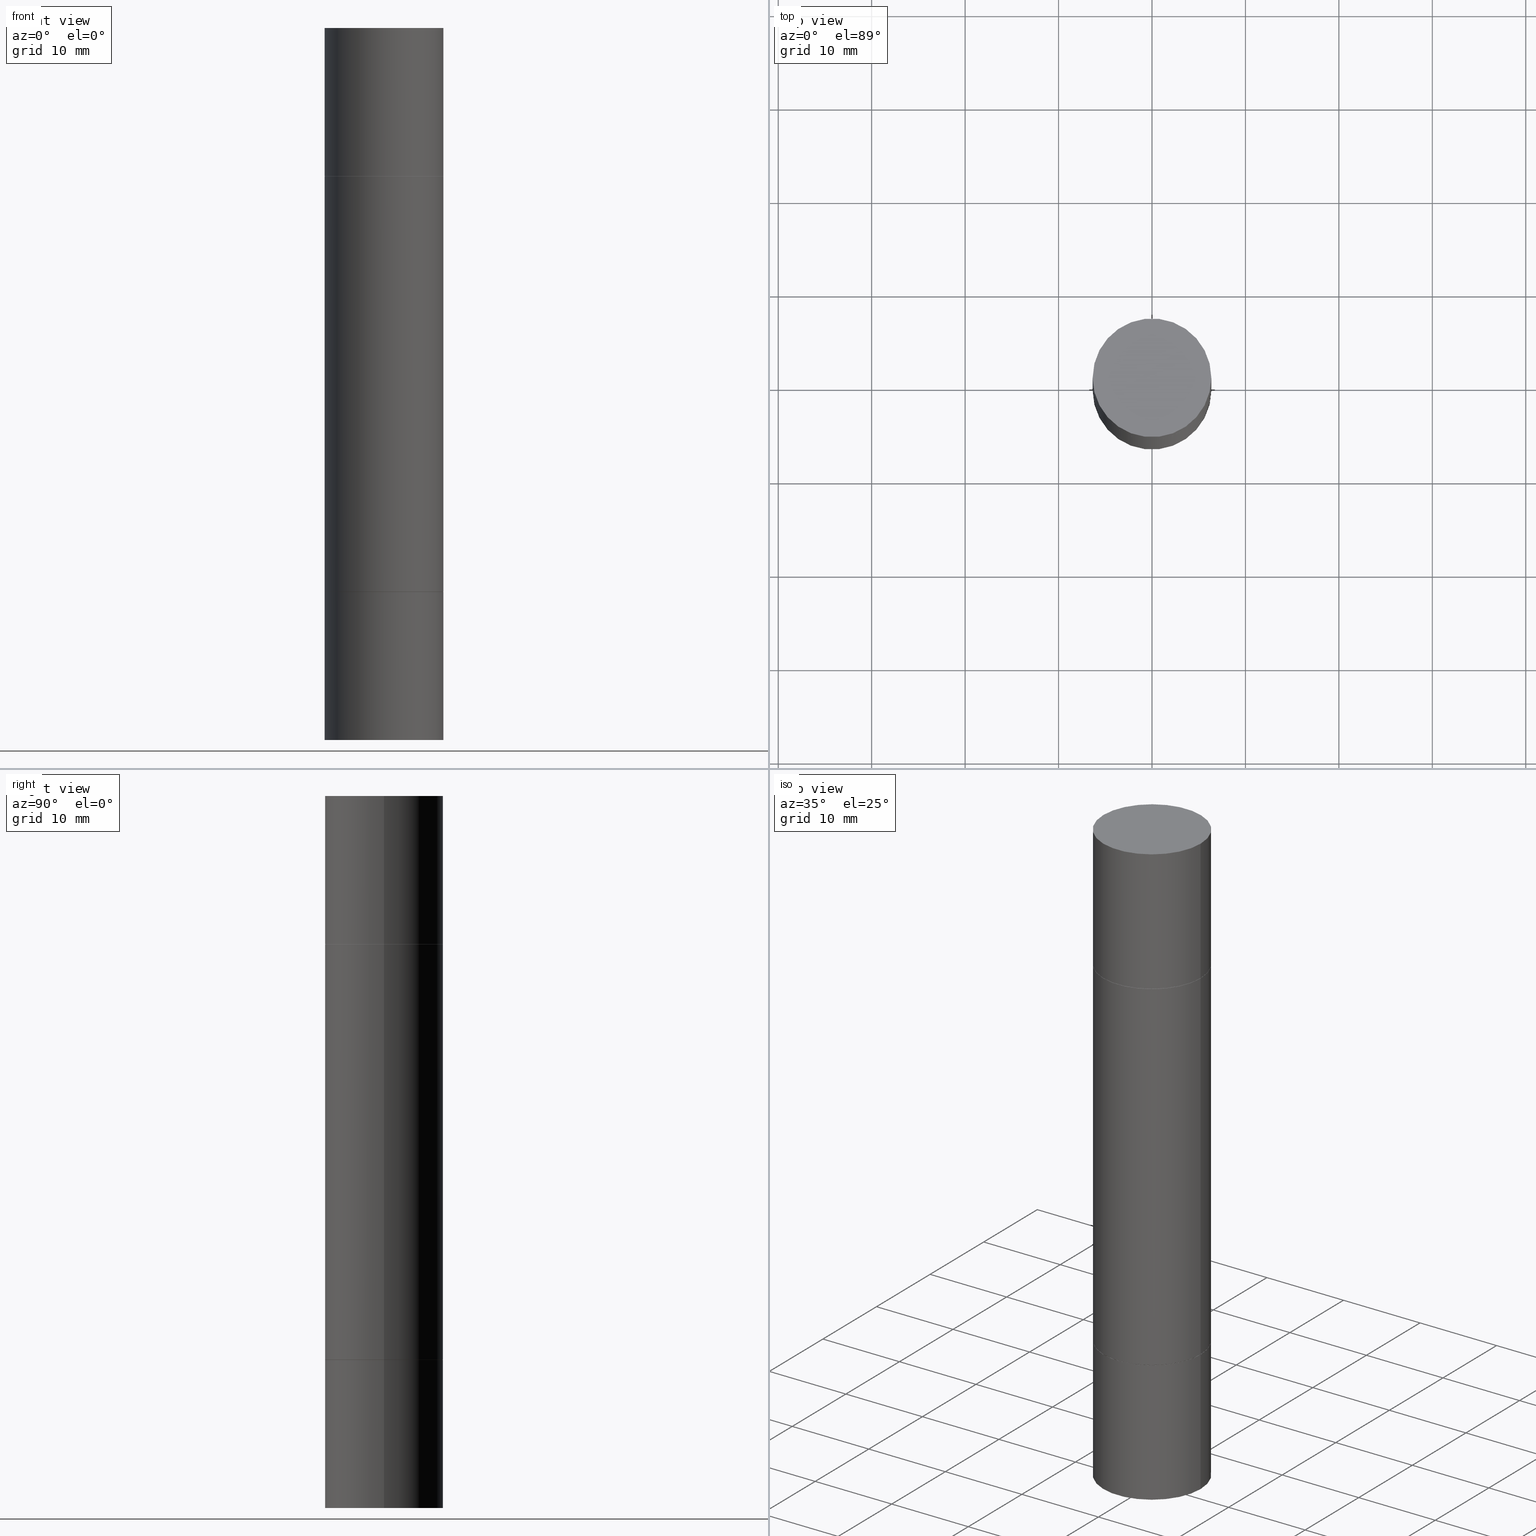
[diagram: canonical four-view strip — front | top / right | iso, engineering-drawing reading convention]
A machine part, canonical four-view strip (front | top / right | iso — engineering-drawing reading convention). The complete STEP part file that produces these views, byte-faithful:
ISO-10303-21;
HEADER;
FILE_DESCRIPTION (( 'STEP AP203' ),
    '1' );
FILE_NAME ('31189.STEP',
    '2024-03-04T15:41:29',
    ( '' ),
    ( '' ),
    'SwSTEP 2.0',
    'SolidWorks 2023',
    '' );
FILE_SCHEMA (( 'CONFIG_CONTROL_DESIGN' ));
ENDSEC;

DATA;
#1 = AXIS2_PLACEMENT_3D ( 'NONE', #385, #599, #234 ) ;
#2 = AXIS2_PLACEMENT_3D ( 'NONE', #155, #521, #3 ) ;
#3 = DIRECTION ( 'NONE',  ( 1.000000000000000000, -6.982962677686266711E-15, 0.000000000000000000 ) ) ;
#4 = ORIENTED_EDGE ( 'NONE', *, *, #343, .T. ) ;
#5 = DIRECTION ( 'NONE',  ( 0.000000000000000000, 3.492185875197449524E-15, 1.000000000000000000 ) ) ;
#6 = ORIENTED_EDGE ( 'NONE', *, *, #608, .T. ) ;
#7 = EDGE_CURVE ( 'NONE', #511, #565, #335, .T. ) ;
#8 = CYLINDRICAL_SURFACE ( 'NONE', #556, 0.2500000000000000000 ) ;
#9 = CYLINDRICAL_SURFACE ( 'NONE', #263, 0.2500000000000000000 ) ;
#10 = VERTEX_POINT ( 'NONE', #579 ) ;
#11 = MECHANICAL_CONTEXT ( 'NONE', #189, 'mechanical' ) ;
#12 = LINE ( 'NONE', #369, #276 ) ;
#13 = VERTEX_POINT ( 'NONE', #672 ) ;
#14 = CARTESIAN_POINT ( 'NONE',  ( 1.745740669421624462E-15, 0.2499999999999978073, -0.6249999999999997780 ) ) ;
#15 = CARTESIAN_POINT ( 'NONE',  ( 5.807988414689700538E-29, -2.180942898156930788E-15, -0.6249999999999988898 ) ) ;
#16 = ORIENTED_EDGE ( 'NONE', *, *, #149, .T. ) ;
#17 = AXIS2_PLACEMENT_3D ( 'NONE', #398, #516, #510 ) ;
#18 = CYLINDRICAL_SURFACE ( 'NONE', #1, 0.2500000000000000000 ) ;
#19 = AXIS2_PLACEMENT_3D ( 'NONE', #22, #537, #76 ) ;
#20 = CARTESIAN_POINT ( 'NONE',  ( 0.2500000000000000000, -3.926683567578497071E-15, -0.6249999999999988898 ) ) ;
#21 = FACE_OUTER_BOUND ( 'NONE', #88, .T. ) ;
#22 = CARTESIAN_POINT ( 'NONE',  ( 3.668203209277703774E-29, -5.237222008264716599E-15, -1.499999999999999556 ) ) ;
#23 = ORIENTED_EDGE ( 'NONE', *, *, #508, .F. ) ;
#24 = DIRECTION ( 'NONE',  ( -1.000000000000000000, 6.982962677686265922E-15, -9.839502134516470631E-33 ) ) ;
#25 = ADVANCED_FACE ( 'NONE', ( #153 ), #512, .T. ) ;
#26 = CARTESIAN_POINT ( 'NONE',  ( 1.745740669421624462E-15, 0.2499999999999917011, -2.375000000000000888 ) ) ;
#27 = EDGE_CURVE ( 'NONE', #13, #433, #212, .T. ) ;
#28 = CARTESIAN_POINT ( 'NONE',  ( 5.807988414689700538E-29, -8.292268179752471696E-15, -2.375000000000000000 ) ) ;
#29 = EDGE_CURVE ( 'NONE', #651, #342, #630, .T. ) ;
#30 = AXIS2_PLACEMENT_3D ( 'NONE', #14, #538, #138 ) ;
#31 = APPROVAL_PERSON_ORGANIZATION ( #539, #205, #70 ) ;
#32 = COORDINATED_UNIVERSAL_TIME_OFFSET ( 5, 0, .BEHIND. ) ;
#33 = EDGE_CURVE ( 'NONE', #172, #618, #635, .T. ) ;
#34 = EDGE_LOOP ( 'NONE', ( #481, #306, #472, #475 ) ) ;
#35 = CARTESIAN_POINT ( 'NONE',  ( -0.2489999999999999991, -4.726788967118193123E-16, -0.6249999999999988898 ) ) ;
#36 = EDGE_CURVE ( 'NONE', #10, #342, #527, .T. ) ;
#37 = LINE ( 'NONE', #258, #513 ) ;
#38 = ORIENTED_EDGE ( 'NONE', *, *, #399, .T. ) ;
#39 = DIRECTION ( 'NONE',  ( -2.445468806185136597E-29, 3.491481338843145583E-15, 1.000000000000000000 ) ) ;
#40 = EDGE_LOOP ( 'NONE', ( #248, #229, #108, #81 ) ) ;
#41 = AXIS2_PLACEMENT_3D ( 'NONE', #594, #381, #63 ) ;
#42 = CIRCLE ( 'NONE', #496, 0.2500000000000000000 ) ;
#43 = EDGE_CURVE ( 'NONE', #219, #55, #285, .T. ) ;
#44 = CARTESIAN_POINT ( 'NONE',  ( 0.000000000000000000, -1.047655762559234344E-14, -2.999999999999999112 ) ) ;
#45 = ORIENTED_EDGE ( 'NONE', *, *, #508, .T. ) ;
#46 = CARTESIAN_POINT ( 'NONE',  ( 5.807988414689700538E-29, -8.292268179752471696E-15, -2.375000000000000000 ) ) ;
#47 = EDGE_LOOP ( 'NONE', ( #211, #364, #154, #409 ) ) ;
#48 = FACE_OUTER_BOUND ( 'NONE', #160, .T. ) ;
#49 = ORIENTED_EDGE ( 'NONE', *, *, #333, .T. ) ;
#50 = CYLINDRICAL_SURFACE ( 'NONE', #57, 0.2499999999999998335 ) ;
#51 = VERTEX_POINT ( 'NONE', #107 ) ;
#52 = CARTESIAN_POINT ( 'NONE',  ( -0.2500000000000000000, -8.761433126149462132E-15, -2.999999999999999112 ) ) ;
#53 = ORIENTED_EDGE ( 'NONE', *, *, #482, .T. ) ;
#54 = DIRECTION ( 'NONE',  ( 1.000000000000000000, -6.982962677686269866E-15, 0.000000000000000000 ) ) ;
#55 = VERTEX_POINT ( 'NONE', #299 ) ;
#56 = ADVANCED_FACE ( 'NONE', ( #459 ), #166, .T. ) ;
#57 = AXIS2_PLACEMENT_3D ( 'NONE', #567, #464, #102 ) ;
#58 = AXIS2_PLACEMENT_3D ( 'NONE', #487, #231, #425 ) ;
#59 = FACE_OUTER_BOUND ( 'NONE', #118, .T. ) ;
#60 = DIRECTION ( 'NONE',  ( 1.000000000000000000, -6.982962677686266711E-15, 0.000000000000000000 ) ) ;
#61 = ORIENTED_EDGE ( 'NONE', *, *, #440, .T. ) ;
#62 = CARTESIAN_POINT ( 'NONE',  ( 7.336406418555409790E-29, 2.113609062914567177E-18, 1.092739197465705287E-15 ) ) ;
#63 = DIRECTION ( 'NONE',  ( 1.000000000000000000, -6.982962677686266711E-15, 0.000000000000000000 ) ) ;
#64 = CALENDAR_DATE ( 2024, 4, 3 ) ;
#65 = DIRECTION ( 'NONE',  ( 1.000000000000000000, -6.982962677686266711E-15, 0.000000000000000000 ) ) ;
#66 = ORIENTED_EDGE ( 'NONE', *, *, #393, .F. ) ;
#67 = DIRECTION ( 'NONE',  ( -2.438088387897960049E-29, 3.491481338843145188E-15, 1.000000000000000000 ) ) ;
#68 = DIRECTION ( 'NONE',  ( -0.7071067811865232589, 2.381258160591016070E-15, -0.7071067811865715536 ) ) ;
#69 = CLOSED_SHELL ( 'NONE', ( #596, #386, #183, #350 ) ) ;
#70 = APPROVAL_ROLE ( '' ) ;
#71 = CARTESIAN_POINT ( 'NONE',  ( -0.2500000000000000000, 6.257098548958748880E-16, 1.092739197465709232E-15 ) ) ;
#72 = AXIS2_PLACEMENT_3D ( 'NONE', #327, #181, #483 ) ;
#73 = VECTOR ( 'NONE', #467, 39.37007874015748143 ) ;
#74 = DIRECTION ( 'NONE',  ( -1.000000000000000000, 6.982962677686265922E-15, -9.839502134516470631E-33 ) ) ;
#75 = PRODUCT ( '31189', '31189', '', ( #11 ) ) ;
#76 = DIRECTION ( 'NONE',  ( 0.000000000000000000, 1.000000000000000000, -3.278217592397118229E-15 ) ) ;
#77 = ORIENTED_EDGE ( 'NONE', *, *, #332, .T. ) ;
#78 = PLANE ( 'NONE',  #186 ) ;
#79 = COORDINATED_UNIVERSAL_TIME_OFFSET ( 5, 0, .BEHIND. ) ;
#80 = DIRECTION ( 'NONE',  ( -2.445468806185136877E-29, -3.492890411551753071E-15, -1.000000000000000000 ) ) ;
#81 = ORIENTED_EDGE ( 'NONE', *, *, #178, .T. ) ;
#82 = DIRECTION ( 'NONE',  ( -2.445468806185136597E-29, -3.492890411551752677E-15, -1.000000000000000000 ) ) ;
#83 = MANIFOLD_SOLID_BREP ( 'Mirror1[1]', #554 ) ;
#84 = EDGE_CURVE ( 'NONE', #460, #94, #391, .T. ) ;
#85 = CARTESIAN_POINT ( 'NONE',  ( 0.2500000000000000000, -1.743627060358652092E-15, 1.092739197465705287E-15 ) ) ;
#86 = AXIS2_PLACEMENT_3D ( 'NONE', #260, #471, #188 ) ;
#87 = LOCAL_TIME ( 10, 41, 29.00000000000000000, #641 ) ;
#88 = EDGE_LOOP ( 'NONE', ( #259, #38, #457, #445 ) ) ;
#89 = CALENDAR_DATE ( 2024, 4, 3 ) ;
#90 = APPROVAL_DATE_TIME ( #431, #205 ) ;
#91 = CONICAL_SURFACE ( 'NONE', #202, 0.2489999999999999991, 0.7853981633974141952 ) ;
#92 = VECTOR ( 'NONE', #282, 39.37007874015748143 ) ;
#93 = DIMENSIONAL_EXPONENTS ( 1.000000000000000000, 0.000000000000000000, 0.000000000000000000, 0.000000000000000000, 0.000000000000000000, 0.000000000000000000, 0.000000000000000000 ) ;
#94 = VERTEX_POINT ( 'NONE', #268 ) ;
#95 = DIRECTION ( 'NONE',  ( -1.000000000000000000, 6.982962677686265922E-15, -9.839502134516470631E-33 ) ) ;
#96 = MANIFOLD_SOLID_BREP ( 'Mirror1[4]', #469 ) ;
#97 = ADVANCED_FACE ( 'NONE', ( #207 ), #50, .T. ) ;
#98 = CARTESIAN_POINT ( 'NONE',  ( 0.2489999999999999991, -3.919700604900811057E-15, -0.6249999999999988898 ) ) ;
#99 = EDGE_LOOP ( 'NONE', ( #636, #145, #525, #302 ) ) ;
#100 = PRODUCT_DEFINITION ( 'UNKNOWN', '', #456, #435 ) ;
#101 = CARTESIAN_POINT ( 'NONE',  ( -0.2500000000000000000, 1.776356839400250465E-15, -1.229733772563726445E-29 ) ) ;
#102 = DIRECTION ( 'NONE',  ( 1.000000000000000000, -6.982962677686267499E-15, 0.000000000000000000 ) ) ;
#103 = ORIENTED_EDGE ( 'NONE', *, *, #581, .T. ) ;
#104 = AXIS2_PLACEMENT_3D ( 'NONE', #668, #522, #349 ) ;
#105 = SECURITY_CLASSIFICATION ( '', '', #664 ) ;
#106 = DIRECTION ( 'NONE',  ( 2.445468806185136597E-29, 3.492890411551752677E-15, 1.000000000000000000 ) ) ;
#107 = CARTESIAN_POINT ( 'NONE',  ( -0.2500000000000000000, 6.257098548958748880E-16, 1.092739197465709232E-15 ) ) ;
#108 = ORIENTED_EDGE ( 'NONE', *, *, #466, .T. ) ;
#109 = CARTESIAN_POINT ( 'NONE',  ( -0.2500000000000000000, 6.257098548958748880E-16, -0.6249999999999988898 ) ) ;
#110 = EDGE_LOOP ( 'NONE', ( #629, #66, #45, #571 ) ) ;
#111 = ADVANCED_FACE ( 'NONE', ( #679 ), #576, .F. ) ;
#112 = CARTESIAN_POINT ( 'NONE',  ( 5.807988414689700538E-29, -2.180942898156930788E-15, -0.6249999999999988898 ) ) ;
#113 = ORIENTED_EDGE ( 'NONE', *, *, #33, .F. ) ;
#114 = EDGE_CURVE ( 'NONE', #429, #568, #250, .T. ) ;
#115 = CYLINDRICAL_SURFACE ( 'NONE', #264, 0.2500000000000000000 ) ;
#116 = EDGE_LOOP ( 'NONE', ( #344, #296 ) ) ;
#117 = DIRECTION ( 'NONE',  ( 1.000000000000000000, -6.982962677686262766E-15, 0.000000000000000000 ) ) ;
#118 = EDGE_LOOP ( 'NONE', ( #607, #420, #407, #678 ) ) ;
#119 = CIRCLE ( 'NONE', #584, 0.2500000000000000000 ) ;
#120 = CONICAL_SURFACE ( 'NONE', #146, 0.2489999999999999991, 0.7853981633974141952 ) ;
#121 = CARTESIAN_POINT ( 'NONE',  ( -0.2489999999999999991, -4.709950929187094786E-16, -0.6249999999999988898 ) ) ;
#122 = PLANE ( 'NONE',  #426 ) ;
#123 = EDGE_CURVE ( 'NONE', #55, #219, #470, .T. ) ;
#124 = APPROVAL_STATUS ( 'not_yet_approved' ) ;
#125 = CARTESIAN_POINT ( 'NONE',  ( 5.807988414689700538E-29, -2.180942898156930788E-15, -0.6249999999999988898 ) ) ;
#126 = CARTESIAN_POINT ( 'NONE',  ( 5.807988414689700538E-29, -8.292268179752471696E-15, -2.375000000000000000 ) ) ;
#127 = PLANE ( 'NONE',  #58 ) ;
#128 = DATE_AND_TIME ( #64, #87 ) ;
#129 = CARTESIAN_POINT ( 'NONE',  ( 0.000000000000000000, -1.047655762559234344E-14, -2.999999999999999112 ) ) ;
#130 = CARTESIAN_POINT ( 'NONE',  ( -0.2500000000000000000, -4.693112891255996450E-16, -0.6259999999999990017 ) ) ;
#131 = CLOSED_SHELL ( 'NONE', ( #492, #97, #25, #658, #353, #387, #279, #245 ) ) ;
#132 = APPLICATION_PROTOCOL_DEFINITION ( 'international standard', 'config_control_design', 1994, #373 ) ;
#133 = CARTESIAN_POINT ( 'NONE',  ( 5.807988414689700538E-29, -2.180942898156930788E-15, -0.6249999999999988898 ) ) ;
#134 = AXIS2_PLACEMENT_3D ( 'NONE', #400, #451, #301 ) ;
#135 = CIRCLE ( 'NONE', #515, 0.2489999999999999991 ) ;
#136 = FACE_OUTER_BOUND ( 'NONE', #223, .T. ) ;
#137 = DIRECTION ( 'NONE',  ( 2.445468806185136597E-29, 3.492890411551752677E-15, 1.000000000000000000 ) ) ;
#138 = DIRECTION ( 'NONE',  ( -1.000000000000000000, 6.982962677686265922E-15, -9.839502134516470631E-33 ) ) ;
#139 = EDGE_CURVE ( 'NONE', #618, #444, #663, .T. ) ;
#140 = PERSON_AND_ORGANIZATION ( #217, #670 ) ;
#141 = PERSON_AND_ORGANIZATION ( #217, #670 ) ;
#142 = CC_DESIGN_PERSON_AND_ORGANIZATION_ASSIGNMENT ( #140, #388, ( #105 ) ) ;
#143 = VERTEX_POINT ( 'NONE', #541 ) ;
#144 = VECTOR ( 'NONE', #341, 39.37007874015748854 ) ;
#145 = ORIENTED_EDGE ( 'NONE', *, *, #33, .T. ) ;
#146 = AXIS2_PLACEMENT_3D ( 'NONE', #133, #588, #228 ) ;
#147 = PERSON_AND_ORGANIZATION ( #217, #670 ) ;
#148 = PLANE ( 'NONE',  #616 ) ;
#149 = EDGE_CURVE ( 'NONE', #13, #444, #535, .T. ) ;
#150 = AXIS2_PLACEMENT_3D ( 'NONE', #602, #137, #329 ) ;
#151 = CARTESIAN_POINT ( 'NONE',  ( 5.805542945883514935E-29, -2.184435788568482141E-15, -0.6259999999999990017 ) ) ;
#152 = ADVANCED_FACE ( 'NONE', ( #21 ), #18, .T. ) ;
#153 = FACE_OUTER_BOUND ( 'NONE', #47, .T. ) ;
#154 = ORIENTED_EDGE ( 'NONE', *, *, #613, .T. ) ;
#155 = CARTESIAN_POINT ( 'NONE',  ( 7.336406418555409790E-29, 2.113609062914567177E-18, 1.092739197465705287E-15 ) ) ;
#156 = ORIENTED_EDGE ( 'NONE', *, *, #225, .T. ) ;
#157 = CARTESIAN_POINT ( 'NONE',  ( 7.336406418555409790E-29, -1.047444401652943635E-14, -3.000000000000000444 ) ) ;
#158 = DIRECTION ( 'NONE',  ( 2.445468806185136597E-29, 3.492890411551752677E-15, 1.000000000000000000 ) ) ;
#159 = EDGE_LOOP ( 'NONE', ( #615, #640, #300, #358 ) ) ;
#160 = EDGE_LOOP ( 'NONE', ( #113, #403, #468, #253 ) ) ;
#161 = AXIS2_PLACEMENT_3D ( 'NONE', #376, #589, #585 ) ;
#162 =( GEOMETRIC_REPRESENTATION_CONTEXT ( 3 ) GLOBAL_UNCERTAINTY_ASSIGNED_CONTEXT ( ( #552 ) ) GLOBAL_UNIT_ASSIGNED_CONTEXT ( ( #182, #543, #503 ) ) REPRESENTATION_CONTEXT ( 'NONE', 'WORKASPACE' ) );
#163 = ADVANCED_FACE ( 'NONE', ( #136 ), #453, .T. ) ;
#164 = CARTESIAN_POINT ( 'NONE',  ( 5.805542945883514935E-29, -8.288776698413628688E-15, -2.374000000000000110 ) ) ;
#165 = ORIENTED_EDGE ( 'NONE', *, *, #123, .T. ) ;
#166 = CYLINDRICAL_SURFACE ( 'NONE', #662, 0.2499999999999998335 ) ;
#167 = ORIENTED_EDGE ( 'NONE', *, *, #666, .T. ) ;
#168 = CYLINDRICAL_SURFACE ( 'NONE', #410, 0.2500000000000000000 ) ;
#169 = PERSON_AND_ORGANIZATION ( #217, #670 ) ;
#170 = DIRECTION ( 'NONE',  ( 2.445468806185136597E-29, 3.492890411551752677E-15, 1.000000000000000000 ) ) ;
#171 = CARTESIAN_POINT ( 'NONE',  ( 5.805542945883514935E-29, -8.288776698413628688E-15, -2.374000000000000110 ) ) ;
#172 = VERTEX_POINT ( 'NONE', #130 ) ;
#173 = EDGE_CURVE ( 'NONE', #433, #13, #643, .T. ) ;
#174 = APPROVAL_STATUS ( 'not_yet_approved' ) ;
#175 = LOCAL_TIME ( 10, 41, 29.00000000000000000, #374 ) ;
#176 = DIRECTION ( 'NONE',  ( 1.000000000000000000, -6.982962677686270655E-15, 0.000000000000000000 ) ) ;
#177 = PLANE ( 'NONE',  #161 ) ;
#178 = EDGE_CURVE ( 'NONE', #623, #489, #359, .T. ) ;
#179 = DIRECTION ( 'NONE',  ( 1.000000000000000000, -6.982962677686266711E-15, 0.000000000000000000 ) ) ;
#180 = DIRECTION ( 'NONE',  ( 2.445468806185136597E-29, 3.492890411551752677E-15, 1.000000000000000000 ) ) ;
#181 = DIRECTION ( 'NONE',  ( -2.445468806185136597E-29, 3.491481338843145583E-15, 1.000000000000000000 ) ) ;
#182 =( CONVERSION_BASED_UNIT ( 'INCH', #491 ) LENGTH_UNIT ( ) NAMED_UNIT ( #93 ) );
#183 = ADVANCED_FACE ( 'NONE', ( #548 ), #325, .F. ) ;
#184 = APPROVAL_ROLE ( '' ) ;
#185 = LINE ( 'NONE', #524, #529 ) ;
#186 = AXIS2_PLACEMENT_3D ( 'NONE', #283, #230, #74 ) ;
#187 = LOCAL_TIME ( 10, 41, 29.00000000000000000, #32 ) ;
#188 = DIRECTION ( 'NONE',  ( 1.000000000000000000, -6.982962677686262766E-15, 0.000000000000000000 ) ) ;
#189 = APPLICATION_CONTEXT ( 'configuration controlled 3d designs of mechanical parts and assemblies' ) ;
#190 = ADVANCED_FACE ( 'NONE', ( #434 ), #78, .T. ) ;
#191 = APPROVAL ( #501, 'UNSPECIFIED' ) ;
#192 = PERSON_AND_ORGANIZATION_ROLE ( 'creator' ) ;
#193 = ORIENTED_EDGE ( 'NONE', *, *, #265, .F. ) ;
#194 = AXIS2_PLACEMENT_3D ( 'NONE', #171, #378, #655 ) ;
#195 = CIRCLE ( 'NONE', #360, 0.2500000000000000000 ) ;
#196 = ORIENTED_EDGE ( 'NONE', *, *, #114, .T. ) ;
#197 = ADVANCED_FACE ( 'NONE', ( #603 ), #271, .F. ) ;
#198 = CARTESIAN_POINT ( 'NONE',  ( 0.2500000000000000000, -1.003451736783519537E-14, -2.374000000000000110 ) ) ;
#199 = ORIENTED_EDGE ( 'NONE', *, *, #36, .T. ) ;
#200 = DIRECTION ( 'NONE',  ( 0.000000000000000000, 1.000000000000000000, -3.492185875197449524E-15 ) ) ;
#201 = ORIENTED_EDGE ( 'NONE', *, *, #84, .T. ) ;
#202 = AXIS2_PLACEMENT_3D ( 'NONE', #28, #553, #500 ) ;
#203 = DIRECTION ( 'NONE',  ( 2.438088387897959769E-29, 3.492890411551753071E-15, 1.000000000000000000 ) ) ;
#204 = ORIENTED_EDGE ( 'NONE', *, *, #7, .T. ) ;
#205 = APPROVAL ( #174, 'UNSPECIFIED' ) ;
#206 = DIRECTION ( 'NONE',  ( 2.445468806185136597E-29, 3.492890411551752677E-15, 1.000000000000000000 ) ) ;
#207 = FACE_OUTER_BOUND ( 'NONE', #99, .T. ) ;
#208 = EDGE_LOOP ( 'NONE', ( #336, #53 ) ) ;
#209 = LINE ( 'NONE', #52, #73 ) ;
#210 = EDGE_LOOP ( 'NONE', ( #517, #593 ) ) ;
#211 = ORIENTED_EDGE ( 'NONE', *, *, #638, .F. ) ;
#212 = CIRCLE ( 'NONE', #262, 0.2489999999999999991 ) ;
#213 = AXIS2_PLACEMENT_3D ( 'NONE', #291, #206, #305 ) ;
#214 = CC_DESIGN_APPROVAL ( #191, ( #105 ) ) ;
#215 = CARTESIAN_POINT ( 'NONE',  ( 7.336406418555409790E-29, 2.113609062914567177E-18, 1.092739197465705287E-15 ) ) ;
#216 = EDGE_LOOP ( 'NONE', ( #201, #633 ) ) ;
#217 = PERSON ( 'UNSPECIFIED', 'UNSPECIFIED', 'UNSPECIFIED', ('UNSPECIFIED'), ('UNSPECIFIED'), ('UNSPECIFIED') ) ;
#218 = DIRECTION ( 'NONE',  ( -0.000000000000000000, -3.492185875197449130E-15, -1.000000000000000000 ) ) ;
#219 = VERTEX_POINT ( 'NONE', #423 ) ;
#220 = CARTESIAN_POINT ( 'NONE',  ( 0.000000000000000000, 0.000000000000000000, 0.000000000000000000 ) ) ;
#221 = EDGE_CURVE ( 'NONE', #568, #429, #609, .T. ) ;
#222 = CARTESIAN_POINT ( 'NONE',  ( 0.000000000000000000, -1.047655762559234344E-14, -2.999999999999999112 ) ) ;
#223 = EDGE_LOOP ( 'NONE', ( #631, #167, #4, #193 ) ) ;
#224 = DIRECTION ( 'NONE',  ( 1.000000000000000000, -6.982962677686266711E-15, 0.000000000000000000 ) ) ;
#225 = EDGE_CURVE ( 'NONE', #143, #172, #561, .T. ) ;
#226 = CARTESIAN_POINT ( 'NONE',  ( 5.807988414689700538E-29, -2.180942898156930788E-15, -0.6249999999999988898 ) ) ;
#227 = CIRCLE ( 'NONE', #600, 0.2500000000000000000 ) ;
#228 = DIRECTION ( 'NONE',  ( 1.000000000000000000, -6.982962677686266711E-15, 0.000000000000000000 ) ) ;
#229 = ORIENTED_EDGE ( 'NONE', *, *, #440, .F. ) ;
#230 = DIRECTION ( 'NONE',  ( 2.438088387897959769E-29, 3.492890411551753071E-15, 1.000000000000000000 ) ) ;
#231 = DIRECTION ( 'NONE',  ( -2.438088387897959769E-29, -3.492890411551753071E-15, -1.000000000000000000 ) ) ;
#232 = CALENDAR_DATE ( 2024, 4, 3 ) ;
#233 = FACE_OUTER_BOUND ( 'NONE', #313, .T. ) ;
#234 = DIRECTION ( 'NONE',  ( 1.000000000000000000, -6.982962677686270655E-15, 0.000000000000000000 ) ) ;
#235 = ADVANCED_FACE ( 'NONE', ( #331 ), #9, .T. ) ;
#236 = DIRECTION ( 'NONE',  ( -2.445468806185136597E-29, 3.491481338843145583E-15, 1.000000000000000000 ) ) ;
#237 = ORIENTED_EDGE ( 'NONE', *, *, #84, .F. ) ;
#238 = DIRECTION ( 'NONE',  ( 1.000000000000000000, -6.982962677686266711E-15, 0.000000000000000000 ) ) ;
#239 = VECTOR ( 'NONE', #611, 39.37007874015748854 ) ;
#240 = ADVANCED_FACE ( 'NONE', ( #478 ), #177, .T. ) ;
#241 = PERSON_AND_ORGANIZATION ( #217, #670 ) ;
#242 = APPROVAL_DATE_TIME ( #290, #191 ) ;
#243 = AXIS2_PLACEMENT_3D ( 'NONE', #151, #414, #458 ) ;
#244 = AXIS2_PLACEMENT_3D ( 'NONE', #637, #236, #272 ) ;
#245 = ADVANCED_FACE ( 'NONE', ( #639 ), #122, .F. ) ;
#246 = LINE ( 'NONE', #35, #317 ) ;
#247 = CARTESIAN_POINT ( 'NONE',  ( 0.2500000000000000000, -1.222229829501391170E-14, -2.999999999999999112 ) ) ;
#248 = ORIENTED_EDGE ( 'NONE', *, *, #399, .F. ) ;
#249 = ORIENTED_EDGE ( 'NONE', *, *, #173, .T. ) ;
#250 = CIRCLE ( 'NONE', #104, 0.2500000000000000000 ) ;
#251 = AXIS2_PLACEMENT_3D ( 'NONE', #297, #106, #404 ) ;
#252 = DIRECTION ( 'NONE',  ( 2.445468806185136597E-29, 3.492890411551752677E-15, 1.000000000000000000 ) ) ;
#253 = ORIENTED_EDGE ( 'NONE', *, *, #413, .T. ) ;
#254 = EDGE_LOOP ( 'NONE', ( #416, #405, #261, #621 ) ) ;
#255 = CARTESIAN_POINT ( 'NONE',  ( -0.2500000000000000000, -7.606999258740704349E-15, -2.375000000000000000 ) ) ;
#256 = DIRECTION ( 'NONE',  ( -2.445468806185136877E-29, -3.492890411551753071E-15, -1.000000000000000000 ) ) ;
#257 = ORIENTED_EDGE ( 'NONE', *, *, #477, .F. ) ;
#258 = CARTESIAN_POINT ( 'NONE',  ( 0.2500000000000000000, -1.745740669421566678E-15, 1.219044193948983948E-29 ) ) ;
#259 = ORIENTED_EDGE ( 'NONE', *, *, #345, .F. ) ;
#260 = CARTESIAN_POINT ( 'NONE',  ( 7.336406418555409790E-29, -1.047444401652943635E-14, -3.000000000000000444 ) ) ;
#261 = ORIENTED_EDGE ( 'NONE', *, *, #36, .F. ) ;
#262 = AXIS2_PLACEMENT_3D ( 'NONE', #46, #39, #54 ) ;
#263 = AXIS2_PLACEMENT_3D ( 'NONE', #222, #649, #419 ) ;
#264 = AXIS2_PLACEMENT_3D ( 'NONE', #473, #312, #540 ) ;
#265 = EDGE_CURVE ( 'NONE', #511, #463, #394, .T. ) ;
#266 = DIRECTION ( 'NONE',  ( -2.445468806185136877E-29, -3.492890411551753071E-15, -1.000000000000000000 ) ) ;
#267 = ORIENTED_EDGE ( 'NONE', *, *, #114, .F. ) ;
#268 = CARTESIAN_POINT ( 'NONE',  ( -0.2489999999999999991, -4.709950929187094786E-16, -0.6249999999999988898 ) ) ;
#269 = EDGE_CURVE ( 'NONE', #463, #10, #498, .T. ) ;
#270 = DIRECTION ( 'NONE',  ( -2.438088387897959769E-29, -3.492890411551753071E-15, -1.000000000000000000 ) ) ;
#271 = PLANE ( 'NONE',  #669 ) ;
#272 = DIRECTION ( 'NONE',  ( 1.000000000000000000, -6.982962677686269866E-15, 0.000000000000000000 ) ) ;
#273 = VERTEX_POINT ( 'NONE', #85 ) ;
#274 = DIRECTION ( 'NONE',  ( 1.000000000000000000, -6.982962677686265922E-15, 4.876176775795935793E-29 ) ) ;
#275 = AXIS2_PLACEMENT_3D ( 'NONE', #112, #363, #60 ) ;
#276 = VECTOR ( 'NONE', #266, 39.37007874015748143 ) ;
#277 = CARTESIAN_POINT ( 'NONE',  ( -0.2500000000000000000, 6.257098548958748880E-16, -0.6249999999999988898 ) ) ;
#278 = DIRECTION ( 'NONE',  ( 0.7071067811865232589, -2.468850131082003836E-15, 0.7071067811865715536 ) ) ;
#279 = ADVANCED_FACE ( 'NONE', ( #288 ), #91, .T. ) ;
#280 = ADVANCED_FACE ( 'NONE', ( #449 ), #148, .F. ) ;
#281 = DIRECTION ( 'NONE',  ( 0.000000000000000000, 0.000000000000000000, 1.000000000000000000 ) ) ;
#282 = DIRECTION ( 'NONE',  ( -2.445468806185136877E-29, 3.491481338843145188E-15, 1.000000000000000000 ) ) ;
#283 = CARTESIAN_POINT ( 'NONE',  ( 1.745740669421639647E-15, 0.2500000000000000000, 5.463695987328526437E-16 ) ) ;
#284 = FACE_OUTER_BOUND ( 'NONE', #216, .T. ) ;
#285 = CIRCLE ( 'NONE', #337, 0.2500000000000000000 ) ;
#286 = EDGE_CURVE ( 'NONE', #460, #143, #659, .T. ) ;
#287 = VECTOR ( 'NONE', #68, 39.37007874015748854 ) ;
#288 = FACE_OUTER_BOUND ( 'NONE', #573, .T. ) ;
#289 = CC_DESIGN_DATE_AND_TIME_ASSIGNMENT ( #128, #323, ( #100 ) ) ;
#290 = DATE_AND_TIME ( #89, #187 ) ;
#291 = CARTESIAN_POINT ( 'NONE',  ( 5.807988414689700538E-29, -2.180942898156930788E-15, -0.6249999999999988898 ) ) ;
#292 = CALENDAR_DATE ( 2024, 4, 3 ) ;
#293 = AXIS2_PLACEMENT_3D ( 'NONE', #215, #158, #354 ) ;
#294 = APPROVAL_PERSON_ORGANIZATION ( #141, #191, #334 ) ;
#295 = EDGE_CURVE ( 'NONE', #433, #618, #606, .T. ) ;
#296 = ORIENTED_EDGE ( 'NONE', *, *, #315, .F. ) ;
#297 = CARTESIAN_POINT ( 'NONE',  ( 7.336406418555409790E-29, 2.113609062914567177E-18, 1.092739197465705287E-15 ) ) ;
#298 = CARTESIAN_POINT ( 'NONE',  ( 0.2500000000000000000, -3.930176457990049608E-15, -0.6259999999999990017 ) ) ;
#299 = CARTESIAN_POINT ( 'NONE',  ( -0.2500000000000000000, -7.606999258740704349E-15, -3.000000000000000444 ) ) ;
#300 = ORIENTED_EDGE ( 'NONE', *, *, #269, .T. ) ;
#301 = DIRECTION ( 'NONE',  ( 1.000000000000000000, -6.982962677686266711E-15, 0.000000000000000000 ) ) ;
#302 = ORIENTED_EDGE ( 'NONE', *, *, #634, .F. ) ;
#303 = CONICAL_SURFACE ( 'NONE', #134, 0.2489999999999999991, 0.7853981633974141952 ) ;
#304 = CC_DESIGN_APPROVAL ( #660, ( #100 ) ) ;
#305 = DIRECTION ( 'NONE',  ( 1.000000000000000000, -6.982962677686266711E-15, 0.000000000000000000 ) ) ;
#306 = ORIENTED_EDGE ( 'NONE', *, *, #477, .T. ) ;
#307 = MANIFOLD_SOLID_BREP ( 'Body-Move/Copy2[1]', #424 ) ;
#308 = DIRECTION ( 'NONE',  ( -2.445468806185136597E-29, -3.492890411551752677E-15, -1.000000000000000000 ) ) ;
#309 = EDGE_LOOP ( 'NONE', ( #465, #237, #355, #156 ) ) ;
#310 = DIRECTION ( 'NONE',  ( -2.445468806185136597E-29, 3.491481338843145583E-15, 1.000000000000000000 ) ) ;
#311 = EDGE_LOOP ( 'NONE', ( #199, #523 ) ) ;
#312 = DIRECTION ( 'NONE',  ( -2.445468806185136597E-29, 3.491481338843145583E-15, 1.000000000000000000 ) ) ;
#313 = EDGE_LOOP ( 'NONE', ( #204, #6 ) ) ;
#314 = CARTESIAN_POINT ( 'NONE',  ( 5.807988414689700538E-29, -2.180942898156930788E-15, -0.6249999999999988898 ) ) ;
#315 = EDGE_CURVE ( 'NONE', #489, #623, #316, .T. ) ;
#316 = CIRCLE ( 'NONE', #213, 0.2500000000000000000 ) ;
#317 = VECTOR ( 'NONE', #395, 39.37007874015748854 ) ;
#318 = CARTESIAN_POINT ( 'NONE',  ( 5.807988414689700538E-29, -8.292268179752471696E-15, -2.375000000000000000 ) ) ;
#319 = DIRECTION ( 'NONE',  ( 1.000000000000000000, -6.982962677686266711E-15, 0.000000000000000000 ) ) ;
#320 = CYLINDRICAL_SURFACE ( 'NONE', #448, 0.2500000000000000000 ) ;
#321 = VERTEX_POINT ( 'NONE', #632 ) ;
#322 = LINE ( 'NONE', #494, #287 ) ;
#323 = DATE_TIME_ROLE ( 'creation_date' ) ;
#324 = DIRECTION ( 'NONE',  ( -2.445468806185136597E-29, 3.491481338843145583E-15, 1.000000000000000000 ) ) ;
#325 = PLANE ( 'NONE',  #30 ) ;
#326 = CARTESIAN_POINT ( 'NONE',  ( 0.2500000000000000000, -3.926683567578497071E-15, -0.6249999999999988898 ) ) ;
#327 = CARTESIAN_POINT ( 'NONE',  ( 5.807988414689700538E-29, -8.292268179752471696E-15, -2.375000000000000000 ) ) ;
#328 = DIRECTION ( 'NONE',  ( 1.000000000000000000, 0.000000000000000000, 0.000000000000000000 ) ) ;
#329 = DIRECTION ( 'NONE',  ( 1.000000000000000000, -6.982962677686266711E-15, 0.000000000000000000 ) ) ;
#330 = ORIENTED_EDGE ( 'NONE', *, *, #221, .F. ) ;
#331 = FACE_OUTER_BOUND ( 'NONE', #40, .T. ) ;
#332 = EDGE_CURVE ( 'NONE', #219, #612, #37, .T. ) ;
#333 = EDGE_CURVE ( 'NONE', #463, #651, #542, .T. ) ;
#334 = APPROVAL_ROLE ( '' ) ;
#335 = CIRCLE ( 'NONE', #560, 0.2489999999999999991 ) ;
#336 = ORIENTED_EDGE ( 'NONE', *, *, #393, .T. ) ;
#337 = AXIS2_PLACEMENT_3D ( 'NONE', #157, #406, #117 ) ;
#338 = CIRCLE ( 'NONE', #397, 0.2500000000000000000 ) ;
#339 = EDGE_LOOP ( 'NONE', ( #519, #577, #575, #49 ) ) ;
#340 = DATE_AND_TIME ( #292, #412 ) ;
#341 = DIRECTION ( 'NONE',  ( -0.7071067811865232589, 7.493145998870265808E-15, 0.7071067811865715536 ) ) ;
#342 = VERTEX_POINT ( 'NONE', #462 ) ;
#343 = EDGE_CURVE ( 'NONE', #651, #463, #227, .T. ) ;
#344 = ORIENTED_EDGE ( 'NONE', *, *, #178, .F. ) ;
#345 = EDGE_CURVE ( 'NONE', #51, #321, #439, .T. ) ;
#346 = VECTOR ( 'NONE', #557, 39.37007874015748854 ) ;
#347 = AXIS2_PLACEMENT_3D ( 'NONE', #164, #507, #348 ) ;
#348 = DIRECTION ( 'NONE',  ( 1.000000000000000000, -6.982962677686266711E-15, 0.000000000000000000 ) ) ;
#349 = DIRECTION ( 'NONE',  ( 1.000000000000000000, -6.982962677686266711E-15, 0.000000000000000000 ) ) ;
#350 = ADVANCED_FACE ( 'NONE', ( #365 ), #168, .T. ) ;
#351 = DIRECTION ( 'NONE',  ( -2.445468806185136877E-29, -3.492890411551753071E-15, -1.000000000000000000 ) ) ;
#352 = DIRECTION ( 'NONE',  ( 1.000000000000000000, -6.982962677686266711E-15, 0.000000000000000000 ) ) ;
#353 = ADVANCED_FACE ( 'NONE', ( #518 ), #303, .T. ) ;
#354 = DIRECTION ( 'NONE',  ( 1.000000000000000000, -6.982962677686266711E-15, 0.000000000000000000 ) ) ;
#355 = ORIENTED_EDGE ( 'NONE', *, *, #286, .T. ) ;
#356 = AXIS2_PLACEMENT_3D ( 'NONE', #226, #82, #319 ) ;
#357 = DIRECTION ( 'NONE',  ( -2.445468806185136877E-29, -3.492890411551753071E-15, -1.000000000000000000 ) ) ;
#358 = ORIENTED_EDGE ( 'NONE', *, *, #505, .F. ) ;
#359 = CIRCLE ( 'NONE', #41, 0.2500000000000000000 ) ;
#360 = AXIS2_PLACEMENT_3D ( 'NONE', #62, #170, #65 ) ;
#361 = CYLINDRICAL_SURFACE ( 'NONE', #645, 0.2499999999999998335 ) ;
#362 = VERTEX_POINT ( 'NONE', #255 ) ;
#363 = DIRECTION ( 'NONE',  ( 2.445468806185136597E-29, 3.492890411551752677E-15, 1.000000000000000000 ) ) ;
#364 = ORIENTED_EDGE ( 'NONE', *, *, #450, .T. ) ;
#365 = FACE_OUTER_BOUND ( 'NONE', #110, .T. ) ;
#366 = EDGE_CURVE ( 'NONE', #362, #612, #119, .T. ) ;
#367 = EDGE_LOOP ( 'NONE', ( #504, #648 ) ) ;
#368 = PERSON_AND_ORGANIZATION_ROLE ( 'creator' ) ;
#369 = CARTESIAN_POINT ( 'NONE',  ( 0.2500000000000000000, -1.222229829501391170E-14, -2.999999999999999112 ) ) ;
#370 = DIRECTION ( 'NONE',  ( 2.445468806185136597E-29, 3.492890411551752677E-15, 1.000000000000000000 ) ) ;
#371 = AXIS2_PLACEMENT_3D ( 'NONE', #551, #370, #438 ) ;
#372 = LOCAL_TIME ( 10, 41, 29.00000000000000000, #79 ) ;
#373 = APPLICATION_CONTEXT ( 'configuration controlled 3d designs of mechanical parts and assemblies' ) ;
#374 = COORDINATED_UNIVERSAL_TIME_OFFSET ( 5, 0, .BEHIND. ) ;
#375 = FACE_OUTER_BOUND ( 'NONE', #339, .T. ) ;
#376 = CARTESIAN_POINT ( 'NONE',  ( 1.745740669421639647E-15, 0.2499999999999895084, -3.000000000000001332 ) ) ;
#377 = CARTESIAN_POINT ( 'NONE',  ( 0.2500000000000000000, -1.003800884917403837E-14, -2.375000000000000000 ) ) ;
#378 = DIRECTION ( 'NONE',  ( -2.445468806185136597E-29, 3.491481338843145583E-15, 1.000000000000000000 ) ) ;
#379 = DATE_AND_TIME ( #597, #372 ) ;
#380 = DIRECTION ( 'NONE',  ( 1.000000000000000000, -6.982962677686266711E-15, 0.000000000000000000 ) ) ;
#381 = DIRECTION ( 'NONE',  ( 2.445468806185136597E-29, 3.492890411551752677E-15, 1.000000000000000000 ) ) ;
#382 = PERSON_AND_ORGANIZATION_ROLE ( 'design_supplier' ) ;
#383 = VECTOR ( 'NONE', #351, 39.37007874015748143 ) ;
#384 = CARTESIAN_POINT ( 'NONE',  ( -0.2500000000000000000, -4.693112891255996450E-16, -0.6259999999999990017 ) ) ;
#385 = CARTESIAN_POINT ( 'NONE',  ( 0.000000000000000000, -1.047655762559234344E-14, -2.999999999999999112 ) ) ;
#386 = ADVANCED_FACE ( 'NONE', ( #677 ), #408, .T. ) ;
#387 = ADVANCED_FACE ( 'NONE', ( #48 ), #361, .T. ) ;
#388 = PERSON_AND_ORGANIZATION_ROLE ( 'classification_officer' ) ;
#389 = CARTESIAN_POINT ( 'NONE',  ( 0.2489999999999999991, -3.919700604900811057E-15, -0.6249999999999988898 ) ) ;
#390 = VECTOR ( 'NONE', #256, 39.37007874015748143 ) ;
#391 = CIRCLE ( 'NONE', #275, 0.2489999999999999991 ) ;
#392 = CIRCLE ( 'NONE', #2, 0.2500000000000000000 ) ;
#393 = EDGE_CURVE ( 'NONE', #273, #506, #562, .T. ) ;
#394 = LINE ( 'NONE', #614, #239 ) ;
#395 = DIRECTION ( 'NONE',  ( -0.7071067811865232589, 2.381258160591016070E-15, -0.7071067811865715536 ) ) ;
#396 = EDGE_LOOP ( 'NONE', ( #330, #267 ) ) ;
#397 = AXIS2_PLACEMENT_3D ( 'NONE', #318, #324, #224 ) ;
#398 = CARTESIAN_POINT ( 'NONE',  ( 5.807988414689700538E-29, -2.180942898156930788E-15, -0.6249999999999988898 ) ) ;
#399 = EDGE_CURVE ( 'NONE', #51, #489, #209, .T. ) ;
#400 = CARTESIAN_POINT ( 'NONE',  ( 5.807988414689700538E-29, -2.180942898156930788E-15, -0.6249999999999988898 ) ) ;
#401 = CC_DESIGN_PERSON_AND_ORGANIZATION_ASSIGNMENT ( #169, #368, ( #100 ) ) ;
#402 = CARTESIAN_POINT ( 'NONE',  ( -0.2499999999999998335, -8.761433126149462132E-15, -2.999999999999999112 ) ) ;
#403 = ORIENTED_EDGE ( 'NONE', *, *, #225, .F. ) ;
#404 = DIRECTION ( 'NONE',  ( 1.000000000000000000, -6.982962677686266711E-15, 0.000000000000000000 ) ) ;
#405 = ORIENTED_EDGE ( 'NONE', *, *, #29, .T. ) ;
#406 = DIRECTION ( 'NONE',  ( -2.445468806185136597E-29, 3.491481338843145583E-15, 1.000000000000000000 ) ) ;
#407 = ORIENTED_EDGE ( 'NONE', *, *, #413, .F. ) ;
#408 = PLANE ( 'NONE',  #656 ) ;
#409 = ORIENTED_EDGE ( 'NONE', *, *, #286, .F. ) ;
#410 = AXIS2_PLACEMENT_3D ( 'NONE', #617, #574, #514 ) ;
#411 = ORIENTED_EDGE ( 'NONE', *, *, #345, .T. ) ;
#412 = LOCAL_TIME ( 10, 41, 29.00000000000000000, #559 ) ;
#413 = EDGE_CURVE ( 'NONE', #444, #618, #665, .T. ) ;
#414 = DIRECTION ( 'NONE',  ( 2.445468806185136597E-29, 3.492890411551752677E-15, 1.000000000000000000 ) ) ;
#415 = EDGE_LOOP ( 'NONE', ( #61, #411 ) ) ;
#416 = ORIENTED_EDGE ( 'NONE', *, *, #343, .F. ) ;
#417 = DIRECTION ( 'NONE',  ( 1.000000000000000000, -6.982962677686266711E-15, 4.876176775795935793E-29 ) ) ;
#418 = ORIENTED_EDGE ( 'NONE', *, *, #482, .F. ) ;
#419 = DIRECTION ( 'NONE',  ( 1.000000000000000000, -6.982962677686270655E-15, 0.000000000000000000 ) ) ;
#420 = ORIENTED_EDGE ( 'NONE', *, *, #295, .T. ) ;
#421 = PERSON_AND_ORGANIZATION ( #217, #670 ) ;
#422 = FACE_OUTER_BOUND ( 'NONE', #626, .T. ) ;
#423 = CARTESIAN_POINT ( 'NONE',  ( 0.2500000000000000000, -1.222018468595100303E-14, -3.000000000000000444 ) ) ;
#424 = CLOSED_SHELL ( 'NONE', ( #536, #240, #280, #563 ) ) ;
#425 = DIRECTION ( 'NONE',  ( 1.000000000000000000, -6.982962677686265922E-15, 9.839502134516470631E-33 ) ) ;
#426 = AXIS2_PLACEMENT_3D ( 'NONE', #126, #67, #274 ) ;
#427 = CIRCLE ( 'NONE', #19, 0.2499999999999998335 ) ;
#428 = DIRECTION ( 'NONE',  ( -2.445468806185136597E-29, 3.491481338843145583E-15, 1.000000000000000000 ) ) ;
#429 = VERTEX_POINT ( 'NONE', #109 ) ;
#430 = DIRECTION ( 'NONE',  ( 2.438088387897959769E-29, 3.492890411551753071E-15, 1.000000000000000000 ) ) ;
#431 = DATE_AND_TIME ( #232, #175 ) ;
#432 = CYLINDRICAL_SURFACE ( 'NONE', #657, 0.2499999999999998335 ) ;
#433 = VERTEX_POINT ( 'NONE', #624 ) ;
#434 = FACE_OUTER_BOUND ( 'NONE', #415, .T. ) ;
#435 = DESIGN_CONTEXT ( 'detailed design', #373, 'design' ) ;
#436 = PERSON_AND_ORGANIZATION_ROLE ( 'design_owner' ) ;
#437 = FACE_OUTER_BOUND ( 'NONE', #34, .T. ) ;
#438 = DIRECTION ( 'NONE',  ( 1.000000000000000000, -6.982962677686266711E-15, 0.000000000000000000 ) ) ;
#439 = CIRCLE ( 'NONE', #293, 0.2500000000000000000 ) ;
#440 = EDGE_CURVE ( 'NONE', #321, #51, #392, .T. ) ;
#441 = DIRECTION ( 'NONE',  ( 2.438088387897960049E-29, -3.491481338843145188E-15, -1.000000000000000000 ) ) ;
#442 = DIRECTION ( 'NONE',  ( -1.000000000000000000, 6.982962677686265922E-15, -4.876176775795935793E-29 ) ) ;
#443 = CC_DESIGN_PERSON_AND_ORGANIZATION_ASSIGNMENT ( #147, #382, ( #456 ) ) ;
#444 = VERTEX_POINT ( 'NONE', #198 ) ;
#445 = ORIENTED_EDGE ( 'NONE', *, *, #466, .F. ) ;
#446 = SHAPE_DEFINITION_REPRESENTATION ( #547, #534 ) ;
#447 = VECTOR ( 'NONE', #80, 39.37007874015748143 ) ;
#448 = AXIS2_PLACEMENT_3D ( 'NONE', #129, #642, #176 ) ;
#449 = FACE_OUTER_BOUND ( 'NONE', #558, .T. ) ;
#450 = EDGE_CURVE ( 'NONE', #94, #172, #246, .T. ) ;
#451 = DIRECTION ( 'NONE',  ( -2.445468806185136597E-29, -3.492890411551752677E-15, -1.000000000000000000 ) ) ;
#452 = CC_DESIGN_PERSON_AND_ORGANIZATION_ASSIGNMENT ( #652, #436, ( #75 ) ) ;
#453 = CONICAL_SURFACE ( 'NONE', #356, 0.2489999999999999991, 0.7853981633974141952 ) ;
#454 = CARTESIAN_POINT ( 'NONE',  ( 5.807988414689700538E-29, -8.292268179752471696E-15, -2.375000000000000000 ) ) ;
#455 = EDGE_LOOP ( 'NONE', ( #257, #165, #77, #676 ) ) ;
#456 = PRODUCT_DEFINITION_FORMATION_WITH_SPECIFIED_SOURCE ( 'ANY', '', #75, .NOT_KNOWN. ) ;
#457 = ORIENTED_EDGE ( 'NONE', *, *, #315, .T. ) ;
#458 = DIRECTION ( 'NONE',  ( 1.000000000000000000, -6.982962677686266711E-15, 0.000000000000000000 ) ) ;
#459 = FACE_OUTER_BOUND ( 'NONE', #159, .T. ) ;
#460 = VERTEX_POINT ( 'NONE', #98 ) ;
#461 = CC_DESIGN_DATE_AND_TIME_ASSIGNMENT ( #340, #605, ( #105 ) ) ;
#462 = CARTESIAN_POINT ( 'NONE',  ( -0.2499999999999998335, -1.995704398973716874E-15, -1.499999999999999556 ) ) ;
#463 = VERTEX_POINT ( 'NONE', #298 ) ;
#464 = DIRECTION ( 'NONE',  ( -2.445468806185136597E-29, -3.492890411551752677E-15, -1.000000000000000000 ) ) ;
#465 = ORIENTED_EDGE ( 'NONE', *, *, #450, .F. ) ;
#466 = EDGE_CURVE ( 'NONE', #321, #623, #509, .T. ) ;
#467 = DIRECTION ( 'NONE',  ( -2.445468806185136877E-29, -3.492890411551753071E-15, -1.000000000000000000 ) ) ;
#468 = ORIENTED_EDGE ( 'NONE', *, *, #634, .T. ) ;
#469 = CLOSED_SHELL ( 'NONE', ( #152, #190, #197, #235 ) ) ;
#470 = CIRCLE ( 'NONE', #86, 0.2500000000000000000 ) ;
#471 = DIRECTION ( 'NONE',  ( -2.445468806185136597E-29, 3.491481338843145583E-15, 1.000000000000000000 ) ) ;
#472 = ORIENTED_EDGE ( 'NONE', *, *, #581, .F. ) ;
#473 = CARTESIAN_POINT ( 'NONE',  ( 0.000000000000000000, 0.000000000000000000, 0.000000000000000000 ) ) ;
#474 = CARTESIAN_POINT ( 'NONE',  ( 0.2489999999999999991, -1.003102588649635236E-14, -2.375000000000000000 ) ) ;
#475 = ORIENTED_EDGE ( 'NONE', *, *, #332, .F. ) ;
#476 = DIRECTION ( 'NONE',  ( 1.000000000000000000, -6.982962677686265922E-15, 9.839502134516470631E-33 ) ) ;
#477 = EDGE_CURVE ( 'NONE', #55, #362, #566, .T. ) ;
#478 = FACE_OUTER_BOUND ( 'NONE', #210, .T. ) ;
#479 = CARTESIAN_POINT ( 'NONE',  ( 0.000000000000000000, 0.000000000000000000, 0.000000000000000000 ) ) ;
#480 = DIRECTION ( 'NONE',  ( 2.445468806185136597E-29, 3.492890411551752677E-15, 1.000000000000000000 ) ) ;
#481 = ORIENTED_EDGE ( 'NONE', *, *, #43, .T. ) ;
#482 = EDGE_CURVE ( 'NONE', #506, #273, #195, .T. ) ;
#483 = DIRECTION ( 'NONE',  ( 1.000000000000000000, -6.982962677686269866E-15, 0.000000000000000000 ) ) ;
#484 = VECTOR ( 'NONE', #493, 39.37007874015748143 ) ;
#485 = DIRECTION ( 'NONE',  ( -2.445468806185136597E-29, -3.492890411551752677E-15, -1.000000000000000000 ) ) ;
#486 = DIRECTION ( 'NONE',  ( 2.445468806185136597E-29, 3.492890411551752677E-15, 1.000000000000000000 ) ) ;
#487 = CARTESIAN_POINT ( 'NONE',  ( 5.807988414689700538E-29, -2.180942898156930788E-15, -0.6249999999999988898 ) ) ;
#488 = FACE_OUTER_BOUND ( 'NONE', #254, .T. ) ;
#489 = VERTEX_POINT ( 'NONE', #277 ) ;
#490 = CARTESIAN_POINT ( 'NONE',  ( 1.745740669421624462E-15, 0.2499999999999978073, -0.6249999999999997780 ) ) ;
#491 = LENGTH_MEASURE_WITH_UNIT ( LENGTH_MEASURE( 0.02539999999999999897 ), #595 );
#492 = ADVANCED_FACE ( 'NONE', ( #59 ), #627, .T. ) ;
#493 = DIRECTION ( 'NONE',  ( -2.445468806185136877E-29, -3.492890411551753071E-15, -1.000000000000000000 ) ) ;
#494 = CARTESIAN_POINT ( 'NONE',  ( -0.2489999999999999991, -4.726788967118193123E-16, -0.6249999999999988898 ) ) ;
#495 = AXIS2_PLACEMENT_3D ( 'NONE', #528, #218, #625 ) ;
#496 = AXIS2_PLACEMENT_3D ( 'NONE', #650, #180, #380 ) ;
#497 = PRODUCT_RELATED_PRODUCT_CATEGORY ( 'detail', '', ( #75 ) ) ;
#498 = LINE ( 'NONE', #661, #484 ) ;
#499 = CARTESIAN_POINT ( 'NONE',  ( -0.2489999999999999991, -6.523016767709821450E-15, -2.375000000000000000 ) ) ;
#500 = DIRECTION ( 'NONE',  ( 1.000000000000000000, -6.982962677686269866E-15, 0.000000000000000000 ) ) ;
#501 = APPROVAL_STATUS ( 'not_yet_approved' ) ;
#502 = VECTOR ( 'NONE', #278, 39.37007874015748854 ) ;
#503 =( NAMED_UNIT ( * ) SI_UNIT ( $, .STERADIAN. ) SOLID_ANGLE_UNIT ( ) );
#504 = ORIENTED_EDGE ( 'NONE', *, *, #27, .F. ) ;
#505 = EDGE_CURVE ( 'NONE', #342, #10, #427, .T. ) ;
#506 = VERTEX_POINT ( 'NONE', #71 ) ;
#507 = DIRECTION ( 'NONE',  ( -2.445468806185136597E-29, 3.491481338843145583E-15, 1.000000000000000000 ) ) ;
#508 = EDGE_CURVE ( 'NONE', #273, #568, #12, .T. ) ;
#509 = LINE ( 'NONE', #247, #383 ) ;
#510 = DIRECTION ( 'NONE',  ( 1.000000000000000000, -6.982962677686266711E-15, 0.000000000000000000 ) ) ;
#511 = VERTEX_POINT ( 'NONE', #578 ) ;
#512 = CONICAL_SURFACE ( 'NONE', #17, 0.2489999999999999991, 0.7853981633974141952 ) ;
#513 = VECTOR ( 'NONE', #674, 39.37007874015748143 ) ;
#514 = DIRECTION ( 'NONE',  ( 1.000000000000000000, -6.982962677686270655E-15, 0.000000000000000000 ) ) ;
#515 = AXIS2_PLACEMENT_3D ( 'NONE', #125, #480, #179 ) ;
#516 = DIRECTION ( 'NONE',  ( -2.445468806185136597E-29, -3.492890411551752677E-15, -1.000000000000000000 ) ) ;
#517 = ORIENTED_EDGE ( 'NONE', *, *, #43, .F. ) ;
#518 = FACE_OUTER_BOUND ( 'NONE', #309, .T. ) ;
#519 = ORIENTED_EDGE ( 'NONE', *, *, #666, .F. ) ;
#520 = DIRECTION ( 'NONE',  ( 1.000000000000000000, -6.982962677686267499E-15, 0.000000000000000000 ) ) ;
#521 = DIRECTION ( 'NONE',  ( 2.445468806185136597E-29, 3.492890411551752677E-15, 1.000000000000000000 ) ) ;
#522 = DIRECTION ( 'NONE',  ( 2.445468806185136597E-29, 3.492890411551752677E-15, 1.000000000000000000 ) ) ;
#523 = ORIENTED_EDGE ( 'NONE', *, *, #505, .T. ) ;
#524 = CARTESIAN_POINT ( 'NONE',  ( -0.2500000000000000000, -8.761433126149462132E-15, -2.999999999999999112 ) ) ;
#525 = ORIENTED_EDGE ( 'NONE', *, *, #139, .T. ) ;
#526 = MANIFOLD_SOLID_BREP ( 'Mirror1[3]', #69 ) ;
#527 = CIRCLE ( 'NONE', #495, 0.2499999999999998335 ) ;
#528 = CARTESIAN_POINT ( 'NONE',  ( 3.668203209277703774E-29, -5.237222008264716599E-15, -1.499999999999999556 ) ) ;
#529 = VECTOR ( 'NONE', #582, 39.37007874015748143 ) ;
#530 = MANIFOLD_SOLID_BREP ( 'Combine1', #131 ) ;
#531 = EDGE_CURVE ( 'NONE', #506, #429, #185, .T. ) ;
#532 = PLANE ( 'NONE',  #572 ) ;
#533 = ORIENTED_EDGE ( 'NONE', *, *, #295, .F. ) ;
#534 = ADVANCED_BREP_SHAPE_REPRESENTATION ( '31189', ( #307, #83, #526, #96, #530, #586 ), #162 ) ;
#535 = LINE ( 'NONE', #474, #502 ) ;
#536 = ADVANCED_FACE ( 'NONE', ( #437 ), #115, .T. ) ;
#537 = DIRECTION ( 'NONE',  ( -0.000000000000000000, -3.492185875197449130E-15, -1.000000000000000000 ) ) ;
#538 = DIRECTION ( 'NONE',  ( 2.438088387897959769E-29, 3.492890411551753071E-15, 1.000000000000000000 ) ) ;
#539 = PERSON_AND_ORGANIZATION ( #217, #670 ) ;
#540 = DIRECTION ( 'NONE',  ( 1.000000000000000000, -6.982962677686266711E-15, 4.876176775795935793E-29 ) ) ;
#541 = CARTESIAN_POINT ( 'NONE',  ( 0.2500000000000000000, -3.930176457990049608E-15, -0.6259999999999990017 ) ) ;
#542 = CIRCLE ( 'NONE', #243, 0.2500000000000000000 ) ;
#543 =( NAMED_UNIT ( * ) PLANE_ANGLE_UNIT ( ) SI_UNIT ( $, .RADIAN. ) );
#544 = CC_DESIGN_APPROVAL ( #205, ( #456 ) ) ;
#545 = CC_DESIGN_SECURITY_CLASSIFICATION ( #105, ( #456 ) ) ;
#546 = LINE ( 'NONE', #550, #447 ) ;
#547 = PRODUCT_DEFINITION_SHAPE ( 'NONE', 'NONE',  #100 ) ;
#548 = FACE_OUTER_BOUND ( 'NONE', #396, .T. ) ;
#549 = ADVANCED_FACE ( 'NONE', ( #488 ), #432, .T. ) ;
#550 = CARTESIAN_POINT ( 'NONE',  ( 0.2499999999999998335, -1.222229829501391012E-14, -2.999999999999999112 ) ) ;
#551 = CARTESIAN_POINT ( 'NONE',  ( 5.805542945883514935E-29, -2.184435788568482141E-15, -0.6259999999999990017 ) ) ;
#552 = UNCERTAINTY_MEASURE_WITH_UNIT (LENGTH_MEASURE( 1.000000000000000082E-05 ), #182, 'distance_accuracy_value', 'NONE');
#553 = DIRECTION ( 'NONE',  ( -2.445468806185136597E-29, 3.491481338843145583E-15, 1.000000000000000000 ) ) ;
#554 = CLOSED_SHELL ( 'NONE', ( #549, #163, #111, #587, #604, #56 ) ) ;
#555 = AXIS2_PLACEMENT_3D ( 'NONE', #619, #5, #200 ) ;
#556 = AXIS2_PLACEMENT_3D ( 'NONE', #220, #428, #417 ) ;
#557 = DIRECTION ( 'NONE',  ( 0.7071067811865232589, -7.407546758114160193E-15, -0.7071067811865715536 ) ) ;
#558 = EDGE_LOOP ( 'NONE', ( #103, #583 ) ) ;
#559 = COORDINATED_UNIVERSAL_TIME_OFFSET ( 5, 0, .BEHIND. ) ;
#560 = AXIS2_PLACEMENT_3D ( 'NONE', #314, #673, #352 ) ;
#561 = CIRCLE ( 'NONE', #371, 0.2500000000000000000 ) ;
#562 = CIRCLE ( 'NONE', #251, 0.2500000000000000000 ) ;
#563 = ADVANCED_FACE ( 'NONE', ( #653 ), #8, .T. ) ;
#564 = CARTESIAN_POINT ( 'NONE',  ( 5.805542945883514935E-29, -2.184435788568482141E-15, -0.6259999999999990017 ) ) ;
#565 = VERTEX_POINT ( 'NONE', #121 ) ;
#566 = LINE ( 'NONE', #101, #92 ) ;
#567 = CARTESIAN_POINT ( 'NONE',  ( 0.000000000000000000, -1.047655762559234344E-14, -2.999999999999999112 ) ) ;
#568 = VERTEX_POINT ( 'NONE', #20 ) ;
#569 = AXIS2_PLACEMENT_3D ( 'NONE', #644, #486, #238 ) ;
#570 = CARTESIAN_POINT ( 'NONE',  ( 1.745740669421639647E-15, 0.2500000000000000000, 5.463695987328526437E-16 ) ) ;
#571 = ORIENTED_EDGE ( 'NONE', *, *, #221, .T. ) ;
#572 = AXIS2_PLACEMENT_3D ( 'NONE', #15, #270, #476 ) ;
#573 = EDGE_LOOP ( 'NONE', ( #533, #249, #16, #680 ) ) ;
#574 = DIRECTION ( 'NONE',  ( -2.445468806185136597E-29, -3.492890411551752677E-15, -1.000000000000000000 ) ) ;
#575 = ORIENTED_EDGE ( 'NONE', *, *, #265, .T. ) ;
#576 = PLANE ( 'NONE',  #555 ) ;
#577 = ORIENTED_EDGE ( 'NONE', *, *, #7, .F. ) ;
#578 = CARTESIAN_POINT ( 'NONE',  ( 0.2489999999999999991, -3.919700604900811057E-15, -0.6249999999999988898 ) ) ;
#579 = CARTESIAN_POINT ( 'NONE',  ( 0.2499999999999998335, -5.456569567838164864E-15, -1.499999999999999556 ) ) ;
#580 = ORIENTED_EDGE ( 'NONE', *, *, #531, .T. ) ;
#581 = EDGE_CURVE ( 'NONE', #612, #362, #338, .T. ) ;
#582 = DIRECTION ( 'NONE',  ( -2.445468806185136877E-29, -3.492890411551753071E-15, -1.000000000000000000 ) ) ;
#583 = ORIENTED_EDGE ( 'NONE', *, *, #366, .T. ) ;
#584 = AXIS2_PLACEMENT_3D ( 'NONE', #454, #310, #671 ) ;
#585 = DIRECTION ( 'NONE',  ( -1.000000000000000000, 6.982962677686265922E-15, -4.876176775795935793E-29 ) ) ;
#586 = AXIS2_PLACEMENT_3D ( 'NONE', #479, #281, #328 ) ;
#587 = ADVANCED_FACE ( 'NONE', ( #233 ), #532, .F. ) ;
#588 = DIRECTION ( 'NONE',  ( -2.445468806185136597E-29, -3.492890411551752677E-15, -1.000000000000000000 ) ) ;
#589 = DIRECTION ( 'NONE',  ( 2.438088387897960049E-29, -3.491481338843145188E-15, -1.000000000000000000 ) ) ;
#590 = CC_DESIGN_PERSON_AND_ORGANIZATION_ASSIGNMENT ( #241, #192, ( #456 ) ) ;
#591 = APPROVAL_DATE_TIME ( #379, #660 ) ;
#592 = CARTESIAN_POINT ( 'NONE',  ( 0.000000000000000000, -1.047655762559234344E-14, -2.999999999999999112 ) ) ;
#593 = ORIENTED_EDGE ( 'NONE', *, *, #123, .F. ) ;
#594 = CARTESIAN_POINT ( 'NONE',  ( 5.807988414689700538E-29, -2.180942898156930788E-15, -0.6249999999999988898 ) ) ;
#595 =( LENGTH_UNIT ( ) NAMED_UNIT ( * ) SI_UNIT ( $, .METRE. ) );
#596 = ADVANCED_FACE ( 'NONE', ( #422 ), #320, .T. ) ;
#597 = CALENDAR_DATE ( 2024, 4, 3 ) ;
#598 = CARTESIAN_POINT ( 'NONE',  ( -0.2500000000000000000, -3.522097508821832131E-15, -2.374000000000000110 ) ) ;
#599 = DIRECTION ( 'NONE',  ( -2.445468806185136597E-29, -3.492890411551752677E-15, -1.000000000000000000 ) ) ;
#600 = AXIS2_PLACEMENT_3D ( 'NONE', #564, #252, #628 ) ;
#601 = CIRCLE ( 'NONE', #150, 0.2489999999999999991 ) ;
#602 = CARTESIAN_POINT ( 'NONE',  ( 5.807988414689700538E-29, -2.180942898156930788E-15, -0.6249999999999988898 ) ) ;
#603 = FACE_OUTER_BOUND ( 'NONE', #116, .T. ) ;
#604 = ADVANCED_FACE ( 'NONE', ( #375 ), #120, .T. ) ;
#605 = DATE_TIME_ROLE ( 'classification_date' ) ;
#606 = LINE ( 'NONE', #499, #144 ) ;
#607 = ORIENTED_EDGE ( 'NONE', *, *, #27, .T. ) ;
#608 = EDGE_CURVE ( 'NONE', #565, #511, #135, .T. ) ;
#609 = CIRCLE ( 'NONE', #569, 0.2500000000000000000 ) ;
#610 = APPROVAL_PERSON_ORGANIZATION ( #421, #660, #184 ) ;
#611 = DIRECTION ( 'NONE',  ( 0.7071067811865232589, -7.407546758114160193E-15, -0.7071067811865715536 ) ) ;
#612 = VERTEX_POINT ( 'NONE', #377 ) ;
#613 = EDGE_CURVE ( 'NONE', #172, #143, #42, .T. ) ;
#614 = CARTESIAN_POINT ( 'NONE',  ( 0.2489999999999999991, -3.919700604900811057E-15, -0.6249999999999988898 ) ) ;
#615 = ORIENTED_EDGE ( 'NONE', *, *, #29, .F. ) ;
#616 = AXIS2_PLACEMENT_3D ( 'NONE', #26, #441, #442 ) ;
#617 = CARTESIAN_POINT ( 'NONE',  ( 0.000000000000000000, -1.047655762559234344E-14, -2.999999999999999112 ) ) ;
#618 = VERTEX_POINT ( 'NONE', #598 ) ;
#619 = CARTESIAN_POINT ( 'NONE',  ( 0.000000000000000000, 0.000000000000000000, -1.499999999999999556 ) ) ;
#620 = DIRECTION ( 'NONE',  ( -2.445468806185136597E-29, -3.492890411551752677E-15, -1.000000000000000000 ) ) ;
#621 = ORIENTED_EDGE ( 'NONE', *, *, #269, .F. ) ;
#622 = CARTESIAN_POINT ( 'NONE',  ( -0.2499999999999998335, -8.761433126149462132E-15, -2.999999999999999112 ) ) ;
#623 = VERTEX_POINT ( 'NONE', #326 ) ;
#624 = CARTESIAN_POINT ( 'NONE',  ( -0.2489999999999999991, -6.517718313361599048E-15, -2.375000000000000000 ) ) ;
#625 = DIRECTION ( 'NONE',  ( 0.000000000000000000, 1.000000000000000000, -3.278217592397118229E-15 ) ) ;
#626 = EDGE_LOOP ( 'NONE', ( #418, #580, #196, #23 ) ) ;
#627 = CONICAL_SURFACE ( 'NONE', #244, 0.2489999999999999991, 0.7853981633974141952 ) ;
#628 = DIRECTION ( 'NONE',  ( 1.000000000000000000, -6.982962677686266711E-15, 0.000000000000000000 ) ) ;
#629 = ORIENTED_EDGE ( 'NONE', *, *, #531, .F. ) ;
#630 = LINE ( 'NONE', #402, #654 ) ;
#631 = ORIENTED_EDGE ( 'NONE', *, *, #608, .F. ) ;
#632 = CARTESIAN_POINT ( 'NONE',  ( 0.2500000000000000000, -1.743627060358652092E-15, 1.092739197465705287E-15 ) ) ;
#633 = ORIENTED_EDGE ( 'NONE', *, *, #638, .T. ) ;
#634 = EDGE_CURVE ( 'NONE', #143, #444, #546, .T. ) ;
#635 = LINE ( 'NONE', #622, #390 ) ;
#636 = ORIENTED_EDGE ( 'NONE', *, *, #613, .F. ) ;
#637 = CARTESIAN_POINT ( 'NONE',  ( 5.807988414689700538E-29, -8.292268179752471696E-15, -2.375000000000000000 ) ) ;
#638 = EDGE_CURVE ( 'NONE', #94, #460, #601, .T. ) ;
#639 = FACE_OUTER_BOUND ( 'NONE', #367, .T. ) ;
#640 = ORIENTED_EDGE ( 'NONE', *, *, #333, .F. ) ;
#641 = COORDINATED_UNIVERSAL_TIME_OFFSET ( 5, 0, .BEHIND. ) ;
#642 = DIRECTION ( 'NONE',  ( -2.445468806185136597E-29, -3.492890411551752677E-15, -1.000000000000000000 ) ) ;
#643 = CIRCLE ( 'NONE', #72, 0.2489999999999999991 ) ;
#644 = CARTESIAN_POINT ( 'NONE',  ( 5.807988414689700538E-29, -2.180942898156930788E-15, -0.6249999999999988898 ) ) ;
#645 = AXIS2_PLACEMENT_3D ( 'NONE', #44, #620, #667 ) ;
#646 = APPLICATION_PROTOCOL_DEFINITION ( 'international standard', 'config_control_design', 1994, #189 ) ;
#647 = DIRECTION ( 'NONE',  ( 1.000000000000000000, -6.982962677686267499E-15, 0.000000000000000000 ) ) ;
#648 = ORIENTED_EDGE ( 'NONE', *, *, #173, .F. ) ;
#649 = DIRECTION ( 'NONE',  ( -2.445468806185136597E-29, -3.492890411551752677E-15, -1.000000000000000000 ) ) ;
#650 = CARTESIAN_POINT ( 'NONE',  ( 5.805542945883514935E-29, -2.184435788568482141E-15, -0.6259999999999990017 ) ) ;
#651 = VERTEX_POINT ( 'NONE', #384 ) ;
#652 = PERSON_AND_ORGANIZATION ( #217, #670 ) ;
#653 = FACE_OUTER_BOUND ( 'NONE', #455, .T. ) ;
#654 = VECTOR ( 'NONE', #357, 39.37007874015748143 ) ;
#655 = DIRECTION ( 'NONE',  ( 1.000000000000000000, -6.982962677686266711E-15, 0.000000000000000000 ) ) ;
#656 = AXIS2_PLACEMENT_3D ( 'NONE', #570, #203, #95 ) ;
#657 = AXIS2_PLACEMENT_3D ( 'NONE', #592, #485, #647 ) ;
#658 = ADVANCED_FACE ( 'NONE', ( #284 ), #127, .F. ) ;
#659 = LINE ( 'NONE', #389, #346 ) ;
#660 = APPROVAL ( #124, 'UNSPECIFIED' ) ;
#661 = CARTESIAN_POINT ( 'NONE',  ( 0.2499999999999998335, -1.222229829501391012E-14, -2.999999999999999112 ) ) ;
#662 = AXIS2_PLACEMENT_3D ( 'NONE', #675, #308, #520 ) ;
#663 = CIRCLE ( 'NONE', #194, 0.2500000000000000000 ) ;
#664 = SECURITY_CLASSIFICATION_LEVEL ( 'unclassified' ) ;
#665 = CIRCLE ( 'NONE', #347, 0.2500000000000000000 ) ;
#666 = EDGE_CURVE ( 'NONE', #565, #651, #322, .T. ) ;
#667 = DIRECTION ( 'NONE',  ( 1.000000000000000000, -6.982962677686267499E-15, 0.000000000000000000 ) ) ;
#668 = CARTESIAN_POINT ( 'NONE',  ( 5.807988414689700538E-29, -2.180942898156930788E-15, -0.6249999999999988898 ) ) ;
#669 = AXIS2_PLACEMENT_3D ( 'NONE', #490, #430, #24 ) ;
#670 = ORGANIZATION ( 'UNSPECIFIED', 'UNSPECIFIED', '' ) ;
#671 = DIRECTION ( 'NONE',  ( 1.000000000000000000, -6.982962677686266711E-15, 0.000000000000000000 ) ) ;
#672 = CARTESIAN_POINT ( 'NONE',  ( 0.2489999999999999991, -1.003102588649635236E-14, -2.375000000000000000 ) ) ;
#673 = DIRECTION ( 'NONE',  ( 2.445468806185136597E-29, 3.492890411551752677E-15, 1.000000000000000000 ) ) ;
#674 = DIRECTION ( 'NONE',  ( -2.445468806185136877E-29, 3.491481338843145188E-15, 1.000000000000000000 ) ) ;
#675 = CARTESIAN_POINT ( 'NONE',  ( 0.000000000000000000, -1.047655762559234344E-14, -2.999999999999999112 ) ) ;
#676 = ORIENTED_EDGE ( 'NONE', *, *, #366, .F. ) ;
#677 = FACE_OUTER_BOUND ( 'NONE', #208, .T. ) ;
#678 = ORIENTED_EDGE ( 'NONE', *, *, #149, .F. ) ;
#679 = FACE_OUTER_BOUND ( 'NONE', #311, .T. ) ;
#680 = ORIENTED_EDGE ( 'NONE', *, *, #139, .F. ) ;
ENDSEC;
END-ISO-10303-21;
